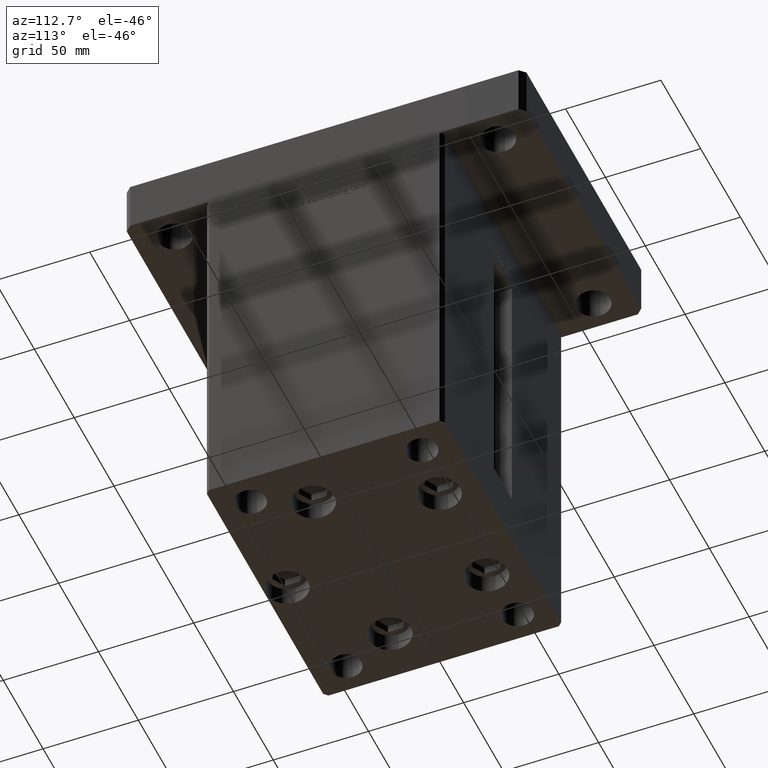
[diagram: clean part render]
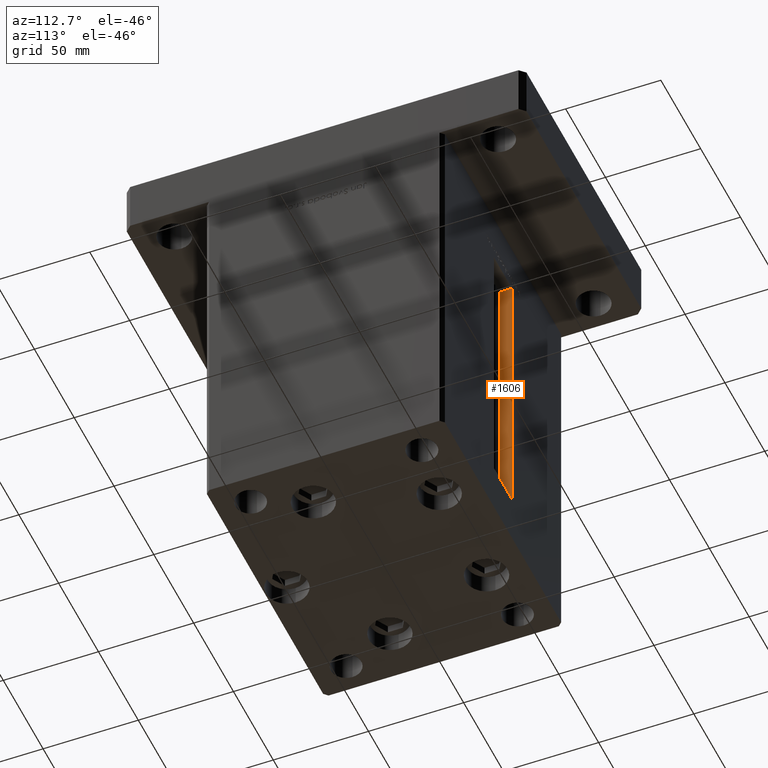
[diagram: same view with one face highlighted and labeled with its STEP entity id]
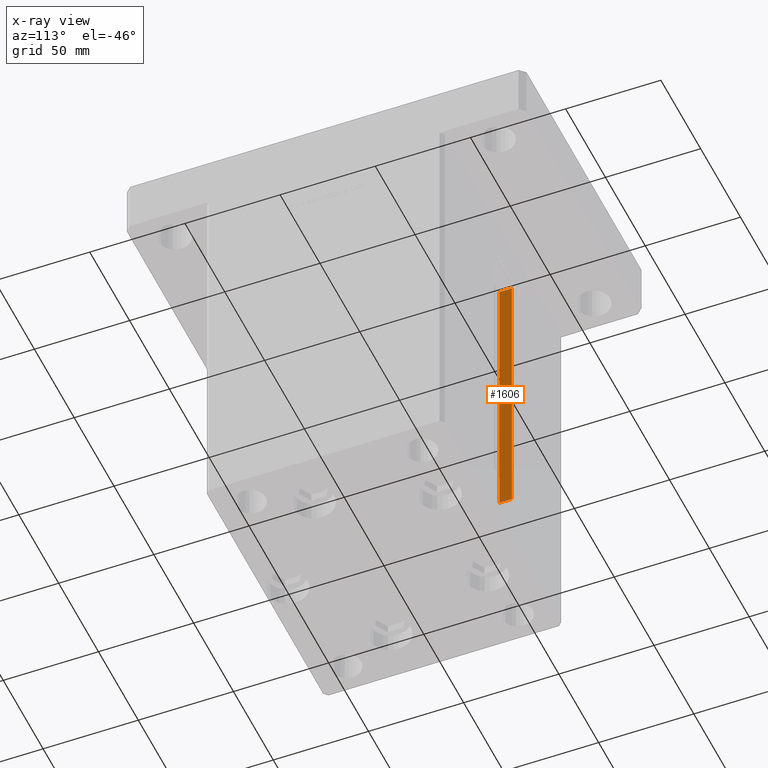
[diagram: x-ray of the same camera — body ghosted, the highlighted face saturated]
A machine part, auxiliary view. The second image highlights one B-rep face of the part: STEP entity #1606.
The next image is the same camera in x-ray: the body ghosted, the highlighted face saturated — about 0% of this face is hidden behind the body in this view.
In plain terms, the highlighted planar face has unit normal (-1, 0, 0).
Its self-contained STEP definition (entity closure, byte-faithful):
#1606 = ADVANCED_FACE ( 'NONE', ( #49895 ), #21347, .F. ) ;
#2221 = DIRECTION ( 'NONE',  ( -0.000000000000000000, -0.000000000000000000, 1.000000000000000000 ) ) ;
#2920 = VECTOR ( 'NONE', #27658, 1000.000000000000000 ) ;
#3154 = VECTOR ( 'NONE', #43743, 1000.000000000000000 ) ;
#3252 = VERTEX_POINT ( 'NONE', #37893 ) ;
#3809 = CARTESIAN_POINT ( 'NONE',  ( -11.25000000000000178, 62.49999999999999289, 147.0000000000000000 ) ) ;
#6684 = EDGE_CURVE ( 'NONE', #10323, #47171, #43999, .T. ) ;
#7582 = AXIS2_PLACEMENT_3D ( 'NONE', #32906, #23575, #50155 ) ;
#7681 = ORIENTED_EDGE ( 'NONE', *, *, #6684, .T. ) ;
#10034 = LINE ( 'NONE', #22931, #14189 ) ;
#10323 = VERTEX_POINT ( 'NONE', #12654 ) ;
#11785 = CARTESIAN_POINT ( 'NONE',  ( -11.25000000000000178, 55.99999999999999289, 0.000000000000000000 ) ) ;
#12654 = CARTESIAN_POINT ( 'NONE',  ( -11.25000000000000178, 62.49999999999999289, 0.000000000000000000 ) ) ;
#14189 = VECTOR ( 'NONE', #2221, 1000.000000000000000 ) ;
#14926 = DIRECTION ( 'NONE',  ( -0.000000000000000000, -0.000000000000000000, 1.000000000000000000 ) ) ;
#19305 = ORIENTED_EDGE ( 'NONE', *, *, #38276, .F. ) ;
#19330 = LINE ( 'NONE', #11785, #2920 ) ;
#21347 = PLANE ( 'NONE',  #7582 ) ;
#22485 = LINE ( 'NONE', #23006, #3154 ) ;
#22931 = CARTESIAN_POINT ( 'NONE',  ( -11.25000000000000178, 55.99999999999999289, 0.000000000000000000 ) ) ;
#23006 = CARTESIAN_POINT ( 'NONE',  ( -11.25000000000000178, 0.000000000000000000, 147.0000000000000000 ) ) ;
#23575 = DIRECTION ( 'NONE',  ( -1.000000000000000000, 0.000000000000000000, 0.000000000000000000 ) ) ;
#27658 = DIRECTION ( 'NONE',  ( -0.000000000000000000, -1.000000000000000000, -0.000000000000000000 ) ) ;
#29579 = EDGE_CURVE ( 'NONE', #3252, #51752, #10034, .T. ) ;
#32906 = CARTESIAN_POINT ( 'NONE',  ( -11.25000000000000178, 55.99999999999999289, 0.000000000000000000 ) ) ;
#35112 = CARTESIAN_POINT ( 'NONE',  ( -11.25000000000000178, 62.49999999999999289, 0.000000000000000000 ) ) ;
#35393 = EDGE_CURVE ( 'NONE', #51752, #47171, #22485, .T. ) ;
#37893 = CARTESIAN_POINT ( 'NONE',  ( -11.25000000000000178, 55.99999999999999289, 0.000000000000000000 ) ) ;
#38276 = EDGE_CURVE ( 'NONE', #10323, #3252, #19330, .T. ) ;
#40672 = CARTESIAN_POINT ( 'NONE',  ( -11.25000000000000178, 55.99999999999999289, 147.0000000000000000 ) ) ;
#43743 = DIRECTION ( 'NONE',  ( 0.000000000000000000, 1.000000000000000000, 0.000000000000000000 ) ) ;
#43999 = LINE ( 'NONE', #35112, #51596 ) ;
#46084 = EDGE_LOOP ( 'NONE', ( #48886, #19305, #7681, #46256 ) ) ;
#46256 = ORIENTED_EDGE ( 'NONE', *, *, #35393, .F. ) ;
#47171 = VERTEX_POINT ( 'NONE', #3809 ) ;
#48886 = ORIENTED_EDGE ( 'NONE', *, *, #29579, .F. ) ;
#49895 = FACE_OUTER_BOUND ( 'NONE', #46084, .T. ) ;
#50155 = DIRECTION ( 'NONE',  ( 0.000000000000000000, 0.000000000000000000, 1.000000000000000000 ) ) ;
#51596 = VECTOR ( 'NONE', #14926, 1000.000000000000000 ) ;
#51752 = VERTEX_POINT ( 'NONE', #40672 ) ;